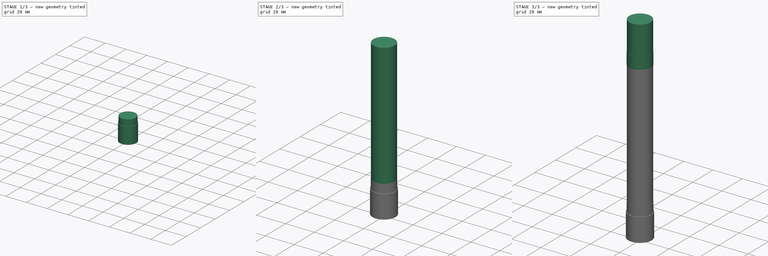
[diagram: build sequence overview — one tinted view per stage of 3, left to right]
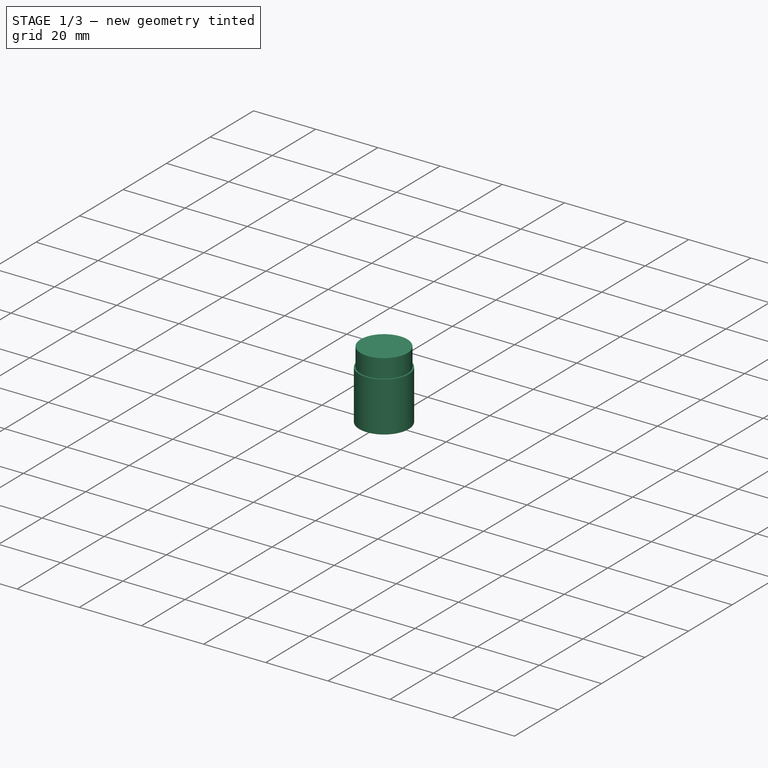
[diagram: stage 1 of 3 — iso view after this stage's code; geometry added in this stage tinted green]
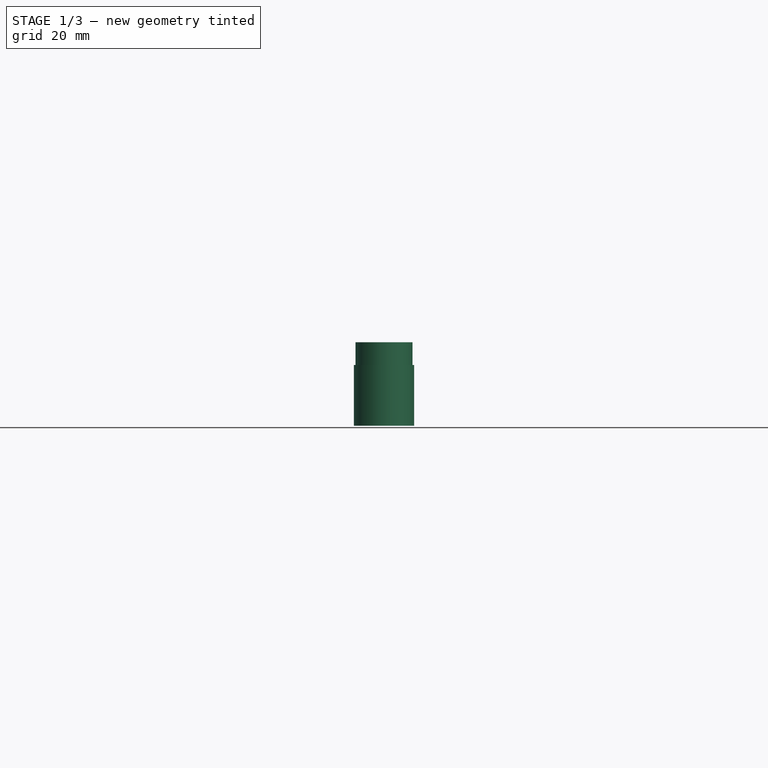
[diagram: stage 1 of 3 — front view after this stage's code; geometry added in this stage tinted green]
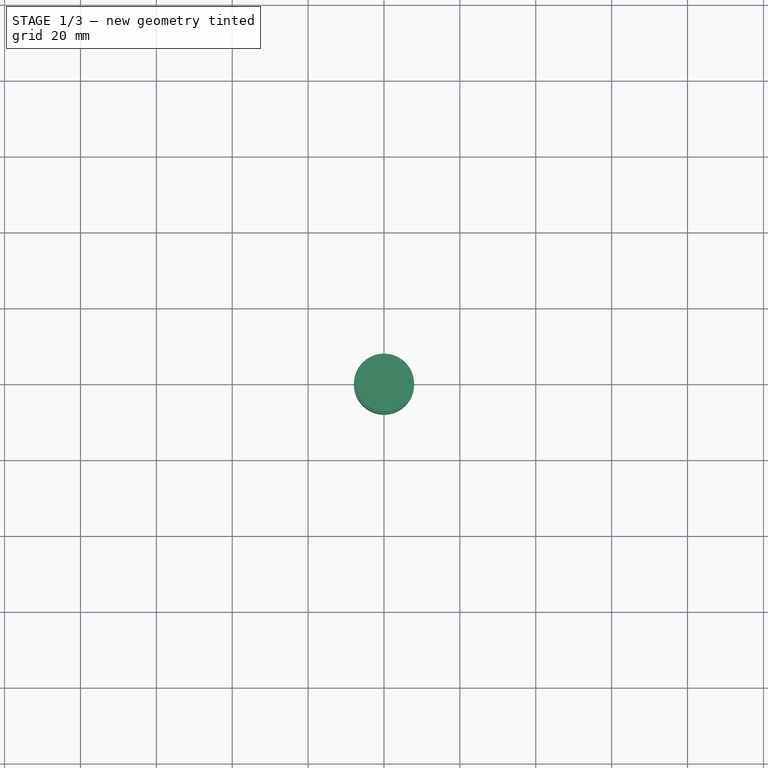
[diagram: stage 1 of 3 — top view after this stage's code; geometry added in this stage tinted green]
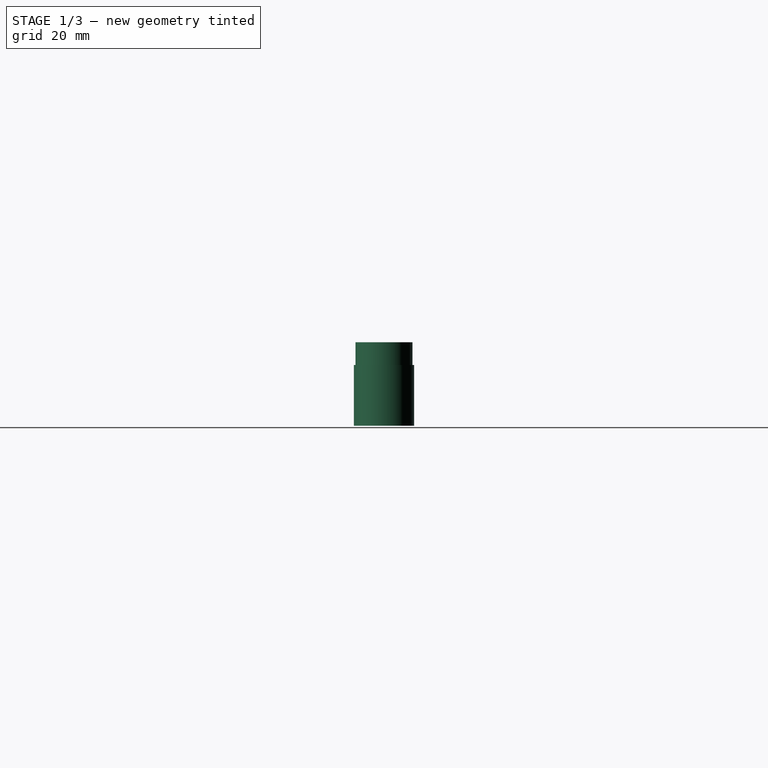
[diagram: stage 1 of 3 — right view after this stage's code; geometry added in this stage tinted green]
FCSTD DOCUMENT  (FreeCAD 0.16R)
Label: Mk10.02
License: All rights reserved
LicenseURL: http://en.wikipedia.org/wiki/All_rights_reserved
objects: Sketcher::SketchObject×8, PartDesign::Pad×5
note: 18 computed .brp shape members not serialized (recipe doc carries the construction recipe); baked Part::Feature solids carry a one-line shape summary decoded from their .brp

FEATURE [Sketcher::SketchObject] Sketch
  sketch-geometry (35):
    g0: Circle CenterX=-263.687 CenterY=189 CenterZ=0 NormalX=0 NormalY=0 NormalZ=1 Radius=189
    g1: Circle CenterX=355 CenterY=189 CenterZ=0 NormalX=0 NormalY=0 NormalZ=1 Radius=189
    g2: Circle [constr] CenterX=0 CenterY=154 CenterZ=0 NormalX=0 NormalY=0 NormalZ=1 Radius=100
    g3: LineSegment StartX=-87.7115 StartY=440.891 StartZ=0 EndX=0 EndY=154 EndZ=0
    g4: LineSegment StartX=0 StartY=154 StartZ=0 EndX=256.485 EndY=410.914 EndZ=0
    g5: LineSegment StartX=-263.687 StartY=189 StartZ=0 EndX=241.989 EndY=455.399 EndZ=0
    g6: LineSegment StartX=238.345 StartY=467.124 StartZ=0 EndX=331.224 EndY=181.275 EndZ=0
    g7: LineSegment StartX=296.788 StartY=394.047 StartZ=0 EndX=234.018 EndY=373.652 EndZ=0
    g8: LineSegment StartX=331.224 StartY=181.275 StartZ=0 EndX=355 EndY=189 EndZ=0
    g9: LineSegment StartX=250.946 StartY=387.244 StartZ=0 EndX=275.103 EndY=395.093 EndZ=0
    g10: LineSegment StartX=253.11 StartY=380.587 StartZ=0 EndX=277.266 EndY=388.436 EndZ=0
    g11: LineSegment StartX=227.461 StartY=459.524 StartZ=0 EndX=251.618 EndY=467.373 EndZ=0
    g12: LineSegment StartX=225.298 StartY=466.182 StartZ=0 EndX=249.455 EndY=474.031 EndZ=0
    g13: LineSegment [constr] StartX=225.933 StartY=474.584 StartZ=0 EndX=253.744 EndY=388.989 EndZ=0
    g14: LineSegment StartX=-263.687 StartY=189 StartZ=0 EndX=0 EndY=154 EndZ=0
    g15: LineSegment [constr] StartX=-263.687 StartY=189 StartZ=0 EndX=355 EndY=189 EndZ=0
    g16: LineSegment StartX=-263.687 StartY=189 StartZ=0 EndX=-58.3138 EndY=374.538 EndZ=0
    g17: LineSegment StartX=-128.37 StartY=430.879 StartZ=0 EndX=-41.0907 EndY=430.879 EndZ=0
    g18: LineSegment StartX=247.976 StartY=499.315 StartZ=0 EndX=183.393 EndY=499.315 EndZ=0
    g19: LineSegment StartX=-119.944 StartY=390.105 StartZ=0 EndX=-43.7992 EndY=392.874 EndZ=0
    g20: Circle CenterX=0 CenterY=154 CenterZ=0 NormalX=0 NormalY=0 NormalZ=1 Radius=60
    g21: Circle CenterX=-263.687 CenterY=189 CenterZ=0 NormalX=0 NormalY=0 NormalZ=1 Radius=28
    g22: LineSegment StartX=237.702 StartY=359.077 StartZ=0 EndX=302.374 EndY=380.09 EndZ=0
    g23: LineSegment StartX=60.7064 StartY=203.485 StartZ=0 EndX=251.599 EndY=394.696 EndZ=0
    g24: LineSegment StartX=49.3833 StartY=214.789 StartZ=0 EndX=246.606 EndY=412.341 EndZ=0
    g25: LineSegment StartX=-228.903 StartY=202.843 StartZ=0 EndX=238 EndY=448.815 EndZ=0
    g26: LineSegment StartX=-232.599 StartY=209.859 StartZ=0 EndX=232.359 EndY=454.807 EndZ=0
    g27: LineSegment StartX=-230.827 StartY=224.03 StartZ=0 EndX=-66.9319 EndY=372.096 EndZ=0
    g28: LineSegment StartX=-225.511 StartY=218.146 StartZ=0 EndX=-61.6159 EndY=366.212 EndZ=0
    g29: Circle [constr] CenterX=-263.687 CenterY=189 CenterZ=0 NormalX=0 NormalY=0 NormalZ=1 Radius=158
    g30: Circle [constr] CenterX=355 CenterY=189 CenterZ=0 NormalX=0 NormalY=0 NormalZ=1 Radius=158
    g31: Circle CenterX=0 CenterY=154 CenterZ=0 NormalX=0 NormalY=0 NormalZ=1 Radius=11.1
    g32: Circle [constr] CenterX=290.907 CenterY=375.811 CenterZ=0 NormalX=0 NormalY=0 NormalZ=1 Radius=8.5
    g33: Circle [constr] CenterX=-263.687 CenterY=189 CenterZ=0 NormalX=0 NormalY=0 NormalZ=1 Radius=147
    g34: Circle [constr] CenterX=355 CenterY=189 CenterZ=0 NormalX=0 NormalY=0 NormalZ=1 Radius=147
  constraints (79):
    c: Radius(g0) = 189
    c: Equal(g0,g1)
    c: Tangent(g1,g-1)
    c: Tangent(g-1,g0)
    c: Radius(g2) = 100
    c: Coincident(g3,g2)
    c: Coincident(g4,g2)
    c: Angle(g3) = -1.27409
    c: Angle(g6) = -1.25664
    c: PointOnObject(g2,g-2)
    c: Distance(g1,g7) = 213
    c: Coincident(g1,g8)
    c: Coincident(g8,g6)
    c: Perpendicular(g8,g6)
    c: Distance(g8) = 25
    c: Symmetric(g7,g7,g6)
    c: Distance(g7) = 66
    c: Distance(g9) = 25.4
    c: Symmetric(g9,g9,g6)
    c: Distance(g10,g9) = 7
    c: Parallel(g10,g9)
    c: Distance(g10) = 25.4
    c: Distance(g11) = 25.4
    c: Symmetric(g11,g11,g6)
    c: Parallel(g12,g11)
    c: Distance(g12) = 25.4
    c: Symmetric(g12,g12,g6)
    c: Distance(g11,g12) = 7
    c: Distance(g12,g10) = 90
    c: Symmetric(g10,g10,g6)
    c: Distance(g13,g6) = 9.5
    c: DistanceX(g-2,g1) = 355
    c: Coincident(g14,g0)
    c: Coincident(g14,g2)
    c: Coincident(g15,g0)
    c: Coincident(g15,g1)
    c: Distance(g14) = 266
    c: Coincident(g0,g5)
    c: Distance(g3) = 300
    c: Distance(g2,g15) = 35
    c: Distance(g13) = 90
    c: Horizontal(g17)
    c: Horizontal(g18)
    c: Radius(g20) = 60
    c: Coincident(g20,g2)
    c: Radius(g21) = 28
    c: Coincident(g21,g0)
    c: Coincident(g16,g0)
    c: Parallel(g22,g7)
    c: Distance(g22,g7) = 15
    c: Distance(g22) = 68
    c: Symmetric(g22,g22,g6)
    c: Parallel(g23,g4)
    c: Parallel(g4,g24)
    c: Symmetric(g23,g24,g4)
    c: Distance(g23,g24) = 16
    c: Symmetric(g25,g26,g5)
    c: Parallel(g25,g5)
    c: Parallel(g5,g26)
    c: Distance(g25,g26) = 7.93
    c: Parallel(g13,g6)
    c: PointOnObject(g26,g13)
    c: Distance(g26,g11) = 6
    c: Symmetric(g28,g27,g16)
    c: Distance(g28,g27) = 7.93
    c: Parallel(g28,g27)
    c: Symmetric(g28,g27,g16)
    c: Radius(g29) = 158
    c: Coincident(g29,g0)
    c: Radius(g30) = 158
    c: Coincident(g30,g1)
    c: Radius(g31) = 11.1
    c: Coincident(g31,g2)
    c: Radius(g32) = 8.5
    c: Tangent(g1,g32)
    c: Radius(g34) = 147
    c: Equal(g34,g33)
    c: Coincident(g34,g1)
    c: Coincident(g33,g0)
FEATURE [Sketcher::SketchObject] Sketch001
  sketch-geometry (34):
    g0: LineSegment StartX=-19.6226 StartY=254.9 StartZ=0 EndX=20.3774 EndY=254.9 EndZ=0
    g1: LineSegment StartX=20.3774 StartY=254.9 StartZ=0 EndX=20.3774 EndY=277.1 EndZ=0
    g2: LineSegment StartX=20.3774 StartY=277.1 StartZ=0 EndX=-19.6226 EndY=277.1 EndZ=0
    g3: LineSegment StartX=-19.6226 StartY=277.1 StartZ=0 EndX=-19.6226 EndY=254.9 EndZ=0
    g4: LineSegment StartX=-37.5 StartY=18.0125 StartZ=0 EndX=-37.5 EndY=-8.23119 EndZ=0
    g5: LineSegment StartX=37.5 StartY=-8.23119 StartZ=0 EndX=37.5 EndY=18.0125 EndZ=0
    g6: Circle CenterX=0 CenterY=172 CenterZ=0 NormalX=0 NormalY=0 NormalZ=1 Radius=16
    g7: LineSegment [constr] StartX=-47.5504 StartY=188 StartZ=0 EndX=16.4282 EndY=188 EndZ=0
    g8: LineSegment StartX=26.5959 StartY=286.926 StartZ=0 EndX=39.3959 EndY=286.926 EndZ=0
    g9: LineSegment StartX=39.3959 StartY=286.926 StartZ=0 EndX=39.3959 EndY=156 EndZ=0
    g10: LineSegment StartX=26.5959 StartY=249.196 StartZ=0 EndX=26.5959 EndY=286.926 EndZ=0
    g11: LineSegment StartX=33.0459 StartY=194.889 StartZ=0 EndX=33.0459 EndY=156 EndZ=0
    g12: LineSegment StartX=33.0459 StartY=156 StartZ=0 EndX=39.3959 EndY=156 EndZ=0
    g13: LineSegment StartX=24.3774 StartY=326 StartZ=0 EndX=26.2774 EndY=326 EndZ=0
    g14: LineSegment StartX=26.2774 StartY=326 StartZ=0 EndX=26.2774 EndY=206 EndZ=0
    g15: LineSegment StartX=26.2774 StartY=206 StartZ=0 EndX=24.3774 EndY=206 EndZ=0
    g16: LineSegment StartX=24.3774 StartY=206 StartZ=0 EndX=24.3774 EndY=326 EndZ=0
    g17: LineSegment [constr] StartX=-41.1681 StartY=266 StartZ=0 EndX=59.3701 EndY=266 EndZ=0
    g18: LineSegment [constr] StartX=25 StartY=15.033 StartZ=0 EndX=25 EndY=-20.667 EndZ=0
    g19: LineSegment [constr] StartX=26.0509 StartY=265.988 StartZ=0 EndX=25 EndY=0 EndZ=0
    g20: LineSegment [constr] StartX=22.7756 StartY=196.315 StartZ=0 EndX=22.1552 EndY=39.2883 EndZ=0
    g21: LineSegment [constr] StartX=28.1552 StartY=39.2646 StartZ=0 EndX=28.7608 EndY=192.561 EndZ=0
    g22: LineSegment StartX=-10.1027 StartY=254.429 StartZ=0 EndX=-22.2383 EndY=177.313 EndZ=0
    g23: LineSegment StartX=-22.2383 StartY=177.313 StartZ=0 EndX=-37.5 EndY=18.0125 EndZ=0
    g24: LineSegment StartX=9.10535 StartY=254.9 StartZ=0 EndX=24.5173 EndY=186.319 EndZ=0
    g25: LineSegment StartX=24.5173 StartY=186.319 StartZ=0 EndX=40.5972 EndY=-3.06944 EndZ=0
    g26: LineSegment [constr] StartX=-34.1884 StartY=10.6361 StartZ=0 EndX=-20.2715 EndY=155.9 EndZ=0
    g27: LineSegment [constr] StartX=35.6302 StartY=8.15032 StartZ=0 EndX=20.9935 EndY=180.541 EndZ=0
    g28: LineSegment [constr] StartX=43.3748 StartY=11.4971 StartZ=0 EndX=28.9546 EndY=181.338 EndZ=0
    g29: LineSegment StartX=-31.9226 StartY=281.861 StartZ=0 EndX=-31.9226 EndY=156 EndZ=0
    g30: LineSegment StartX=-31.9226 StartY=156 StartZ=0 EndX=-38.2726 EndY=156 EndZ=0
    g31: LineSegment StartX=-38.2726 StartY=156 StartZ=0 EndX=-38.2726 EndY=266 EndZ=0
    g32: LineSegment StartX=-25.4226 StartY=274.99 StartZ=0 EndX=-25.4226 EndY=256.779 EndZ=0
    g33: LineSegment [constr] StartX=-32.6368 StartY=110.717 StartZ=0 EndX=-23.1443 EndY=209.8 EndZ=0
  constraints (76):
    c: Coincident(g0,g1)
    c: Coincident(g1,g2)
    c: Coincident(g2,g3)
    c: Coincident(g3,g0)
    c: Horizontal(g0)
    c: Horizontal(g2)
    c: Vertical(g1)
    c: Vertical(g3)
    c: Vertical(g4)
    c: Vertical(g5)
    c: Distance(g5,g4) = 75
    c: Radius(g6) = 16
    c: Horizontal(g7)
    c: Tangent(g6,g7)
    c: PointOnObject(g6,g-2)
    c: Coincident(g8,g9)
    c: Coincident(g10,g8)
    c: Horizontal(g8)
    c: Vertical(g9)
    c: Vertical(g10)
    c: Vertical(g11)
    c: Coincident(g12,g11)
    c: Horizontal(g12)
    c: Coincident(g12,g9)
    c: Coincident(g13,g14)
    c: Coincident(g14,g15)
    c: Coincident(g15,g16)
    c: Coincident(g16,g13)
    c: Horizontal(g13)
    c: Horizontal(g15)
    c: Vertical(g14)
    c: Vertical(g16)
    c: Symmetric(g15,g13,g17)
    c: Distance(g12) = 6.35
    c: Distance(g1,g16) = 4
    c: Vertical(g18)
    c: PointOnObject(g19,g18)
    c: Parallel(g21,g19)
    c: Parallel(g20,g19)
    c: Symmetric(g20,g21,g19)
    c: Distance(g21,g20) = 6
    c: PointOnObject(g19,g-1)
    c: Distance(g19,g5) = 12.5
    c: Coincident(g22,g23)
    c: Coincident(g23,g4)
    c: DistanceY(g17) = 266
    c: DistanceY(g7) = 188
    c: Symmetric(g2,g0,g17)
    c: Distance(g3) = 22.2
    c: Distance(g2) = 40
    c: Distance(g13) = 1.9
    c: Symmetric(g4,g5,g-2)
    c: Distance(g9,g17) = 110
    c: Distance(g8) = 12.8
    c: Distance(g14) = 120
    c: PointOnObject(g24,g0)
    c: Coincident(g24,g25)
    c: Parallel(g26,g23)
    c: Parallel(g27,g25)
    c: Distance(g27,g25) = 4
    c: Distance(g26,g23) = 4
    c: Parallel(g28,g25)
    c: Distance(g28,g25) = 4
    c: Vertical(g29)
    c: Coincident(g29,g30)
    c: Horizontal(g30)
    c: Coincident(g30,g31)
    c: Vertical(g31)
    c: Vertical(g32)
    c: Distance(g32,g29) = 6.5
    c: Distance(g30) = 6.35
    c: PointOnObject(g31,g17)
    c: Distance(g31) = 110
    c: Distance(g32,g3) = 5.8
    c: Parallel(g33,g23)
    c: Distance(g33,g23) = 4
FEATURE [Sketcher::SketchObject] Sketch003
  sketch-geometry (14):
    g0: Circle CenterX=248.819 CenterY=173 CenterZ=0 NormalX=0 NormalY=0 NormalZ=1 Radius=16
    g1: LineSegment [constr] StartX=206.51 StartY=189 StartZ=0 EndX=267.627 EndY=189 EndZ=0
    g2: LineSegment [constr] StartX=248.819 StartY=173 StartZ=0 EndX=248.819 EndY=0 EndZ=0
    g3: LineSegment StartX=211.819 StartY=17.4636 StartZ=0 EndX=211.819 EndY=0.585398 EndZ=0
    g4: LineSegment StartX=285.819 StartY=17.4636 StartZ=0 EndX=285.819 EndY=0.585398 EndZ=0
    g5: LineSegment StartX=221.781 StartY=198.5 StartZ=0 EndX=275.781 EndY=198.5 EndZ=0
    g6: LineSegment StartX=223.781 StartY=213.5 StartZ=0 EndX=275.781 EndY=213.5 EndZ=0
    g7: LineSegment StartX=217.381 StartY=213.538 StartZ=0 EndX=205.337 EndY=15.4528 EndZ=0
    g8: LineSegment StartX=227.41 StartY=213.708 StartZ=0 EndX=215.355 EndY=15.4516 EndZ=0
    g9: LineSegment StartX=270.345 StartY=213.798 StartZ=0 EndX=282.035 EndY=19.1832 EndZ=0
    g10: LineSegment StartX=280.37 StartY=213.679 StartZ=0 EndX=292.194 EndY=16.8286 EndZ=0
    g11: Circle CenterX=218.819 CenterY=131.529 CenterZ=0 NormalX=0 NormalY=0 NormalZ=1 Radius=4
    g12: Circle CenterX=278.819 CenterY=131.529 CenterZ=0 NormalX=0 NormalY=0 NormalZ=1 Radius=4
    g13: LineSegment [constr] StartX=201.698 StartY=206 StartZ=0 EndX=343.056 EndY=206 EndZ=0
  constraints (28):
    c: Radius(g0) = 16
    c: Horizontal(g1)
    c: Tangent(g1,g0)
    c: DistanceY(g1) = 189
    c: Coincident(g2,g0)
    c: Vertical(g2)
    c: PointOnObject(g2,g-1)
    c: Vertical(g3)
    c: Vertical(g4)
    c: Distance(g3,g4) = 74
    c: Symmetric(g4,g3,g2)
    c: Horizontal(g5)
    c: Horizontal(g6)
    c: Distance(g5,g6) = 15
    c: Distance(g6) = 52
    c: Distance(g5) = 54
    c: Parallel(g7,g8)
    c: Parallel(g9,g10)
    c: Distance(g8,g7) = 10
    c: Distance(g9,g10) = 10
    c: Radius(g11) = 4
    c: Equal(g11,g12)
    c: Symmetric(g12,g11,g2)
    c: Distance(g12,g11) = 60
    c: Horizontal(g13)
    c: Distance(g1,g13) = 17
    c: Symmetric(g6,g5,g13)
    c: Symmetric(g3,g4,g2)
FEATURE [Sketcher::SketchObject] Sketch004
  sketch-geometry (1):
    g0: Circle CenterX=0 CenterY=0 CenterZ=0 NormalX=0 NormalY=0 NormalZ=1 Radius=7.93
  constraints (2):
    c: Coincident(g0,g-1)
    c: Radius(g0) = 7.93
FEATURE [PartDesign::Pad] Pad
  Length = 16
  Length2 = 100
  Sketch = -> Sketch004
  Type = 0
FEATURE [Sketcher::SketchObject] Sketch005
  Placement = pos=(0,0,16) rot=(0,0,1;0rad)
  Support = -> Pad [Face3]
  sketch-geometry (1):
    g0: Circle CenterX=0 CenterY=0 CenterZ=0 NormalX=0 NormalY=0 NormalZ=1 Radius=7.5
  constraints (2):
    c: Radius(g0) = 7.5
    c: Coincident(g0,g-1)
FEATURE [PartDesign::Pad] Pad001
  Length = 6
  Length2 = 100
  Sketch = -> Sketch005
  Type = 0
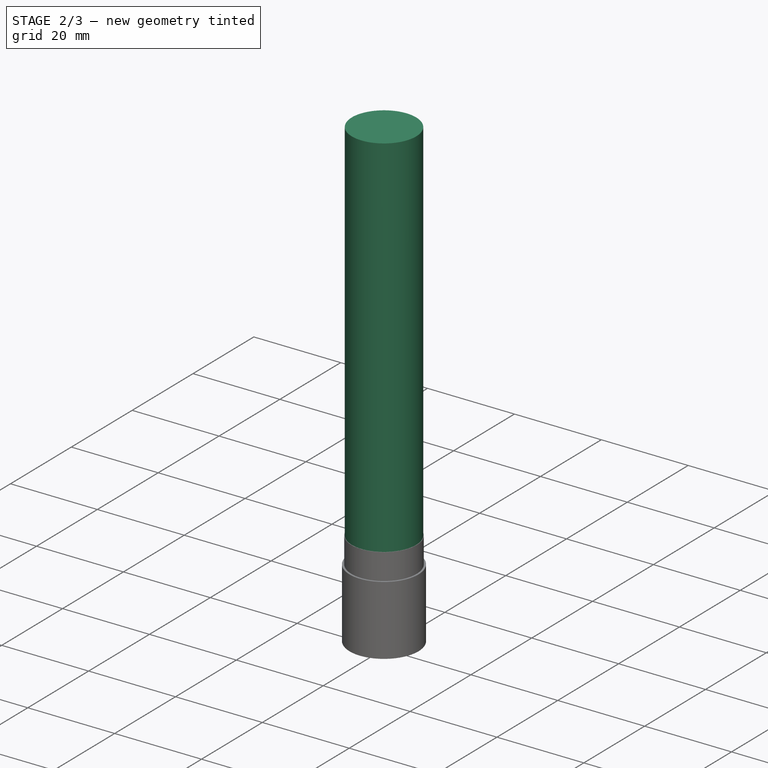
[diagram: stage 2 of 3 — iso view after this stage's code; geometry added in this stage tinted green]
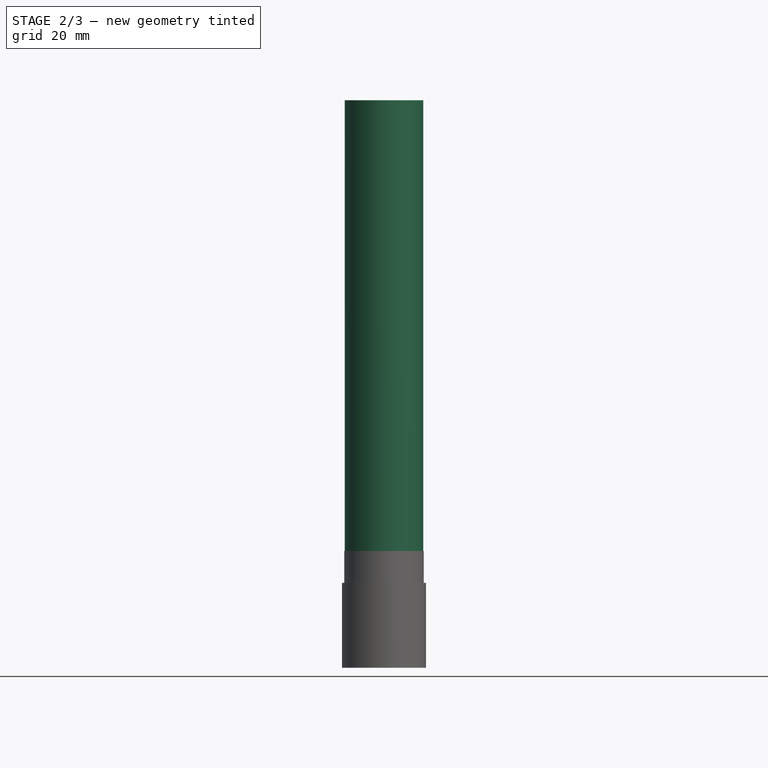
[diagram: stage 2 of 3 — front view after this stage's code; geometry added in this stage tinted green]
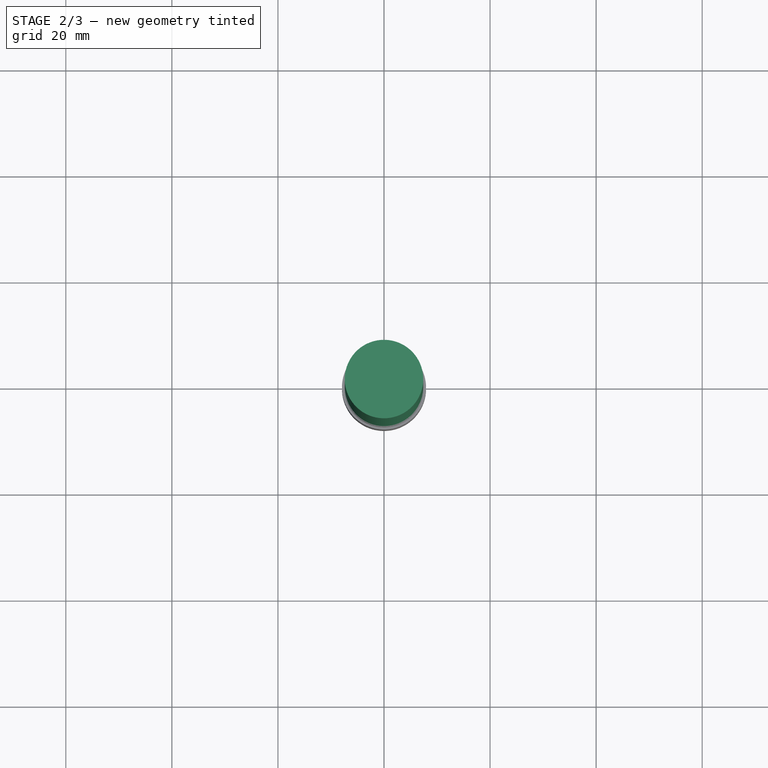
[diagram: stage 2 of 3 — top view after this stage's code; geometry added in this stage tinted green]
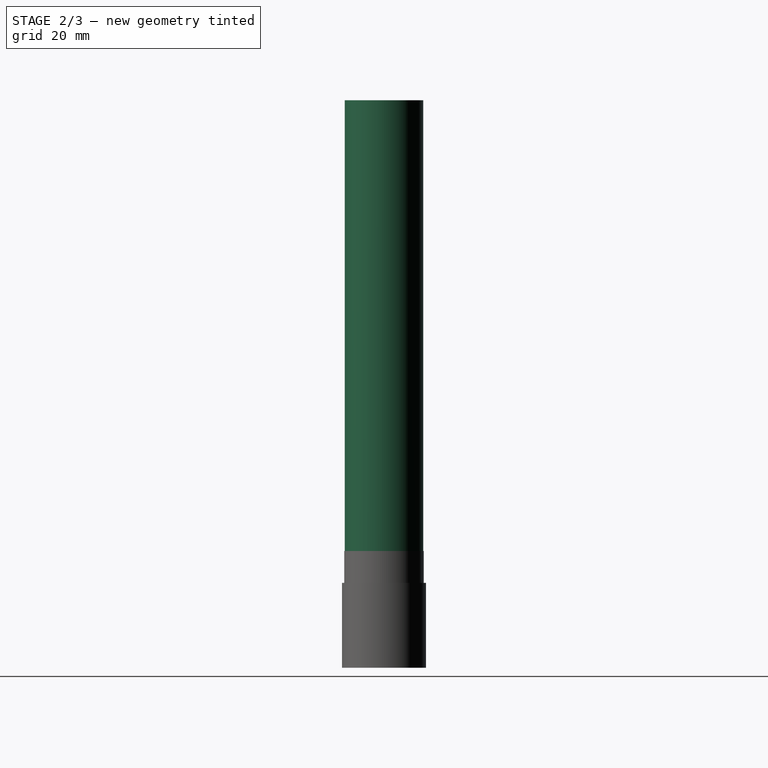
[diagram: stage 2 of 3 — right view after this stage's code; geometry added in this stage tinted green]
FEATURE [Sketcher::SketchObject] Sketch006
  Placement = pos=(0,0,22) rot=(0,0,1;0rad)
  Support = -> Pad001 [Face5]
  sketch-geometry (1):
    g0: Circle CenterX=0 CenterY=0 CenterZ=0 NormalX=0 NormalY=0 NormalZ=1 Radius=7.4
  constraints (2):
    c: Coincident(g0,g-1)
    c: Radius(g0) = 7.4
FEATURE [PartDesign::Pad] Pad002
  Length = 85
  Length2 = 100
  Sketch = -> Sketch006
  Type = 0
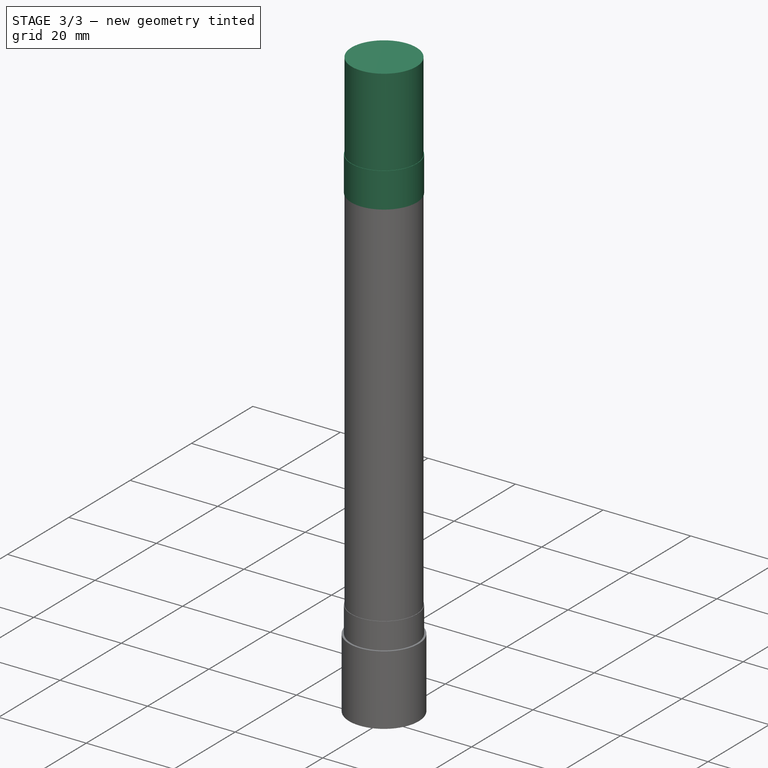
[diagram: stage 3 of 3 — iso view after this stage's code; geometry added in this stage tinted green]
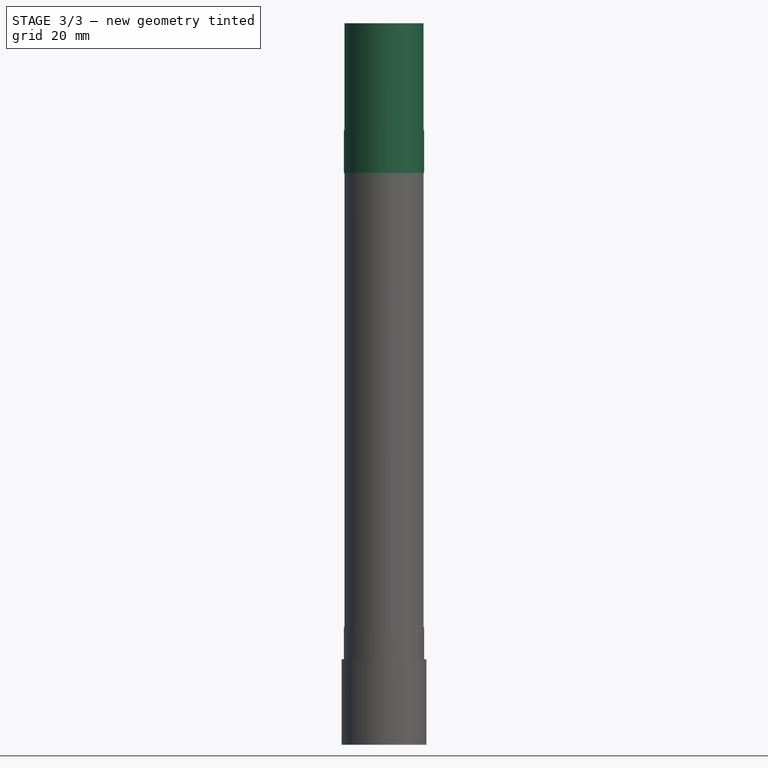
[diagram: stage 3 of 3 — front view after this stage's code; geometry added in this stage tinted green]
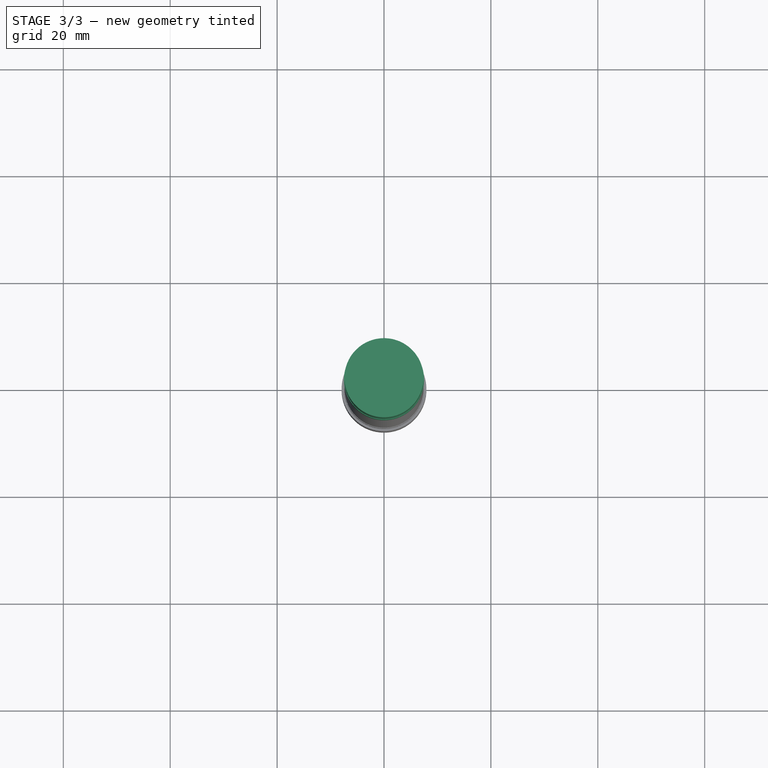
[diagram: stage 3 of 3 — top view after this stage's code; geometry added in this stage tinted green]
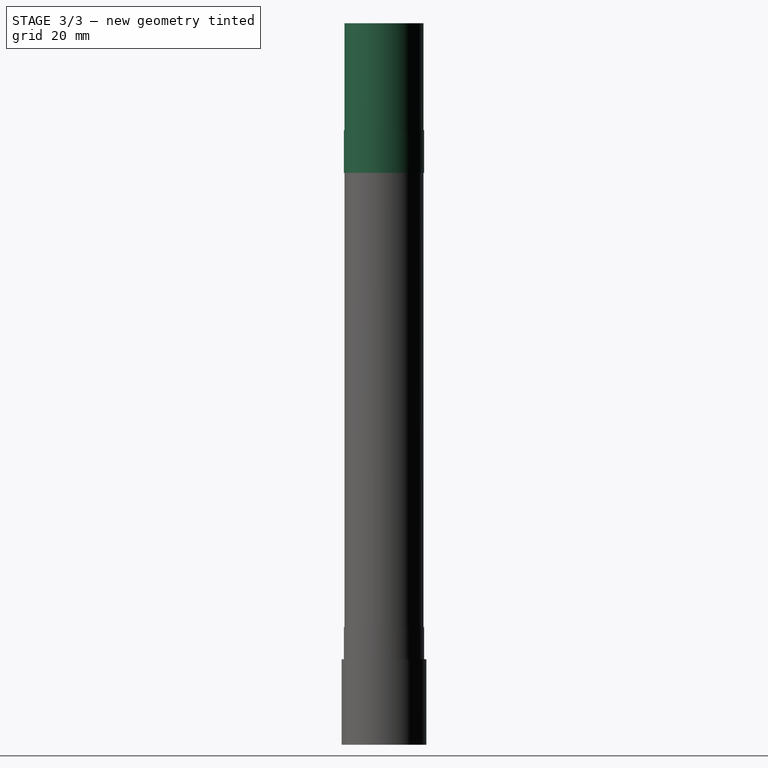
[diagram: stage 3 of 3 — right view after this stage's code; geometry added in this stage tinted green]
FEATURE [Sketcher::SketchObject] Sketch007
  Placement = pos=(0,0,107) rot=(0,0,1;0rad)
  Support = -> Pad002 [Face7]
  sketch-geometry (1):
    g0: Circle CenterX=0 CenterY=0 CenterZ=0 NormalX=0 NormalY=0 NormalZ=1 Radius=7.5
  constraints (2):
    c: Radius(g0) = 7.5
    c: Coincident(g0,g-1)
FEATURE [PartDesign::Pad] Pad003
  Length = 8
  Length2 = 100
  Sketch = -> Sketch007
  Type = 0
FEATURE [Sketcher::SketchObject] Sketch008
  Placement = pos=(0,0,115) rot=(0,0,1;0rad)
  Support = -> Pad003 [Face9]
  sketch-geometry (1):
    g0: Circle CenterX=0 CenterY=0 CenterZ=0 NormalX=0 NormalY=0 NormalZ=1 Radius=7.4
  constraints (2):
    c: Coincident(g0,g-1)
    c: Radius(g0) = 7.4
FEATURE [PartDesign::Pad] Pad004
  Length = 20
  Length2 = 100
  Sketch = -> Sketch008
  Type = 0
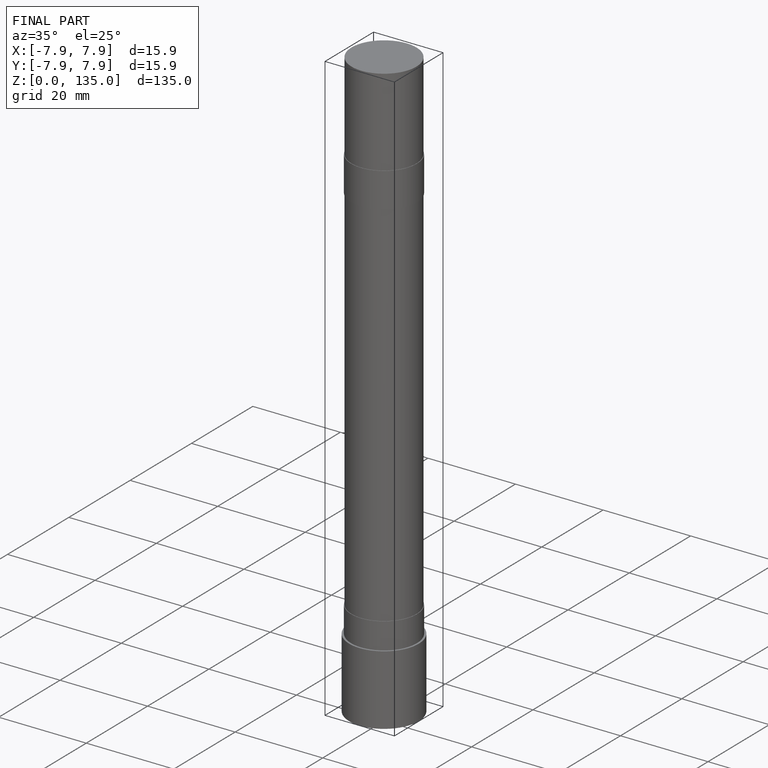
[diagram: finished part — iso view with bounding-box wireframe]
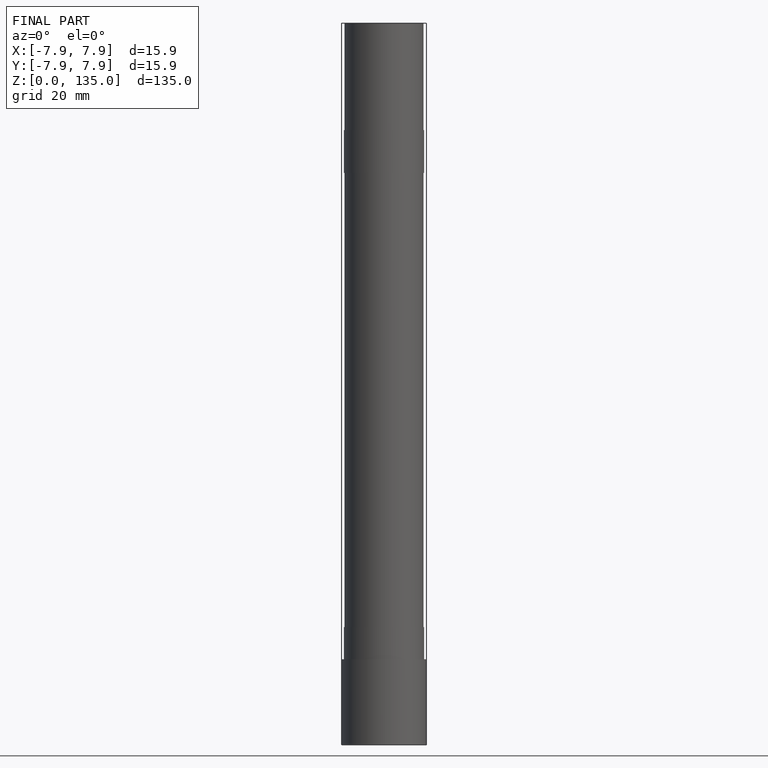
[diagram: finished part — front view with bounding-box wireframe]
